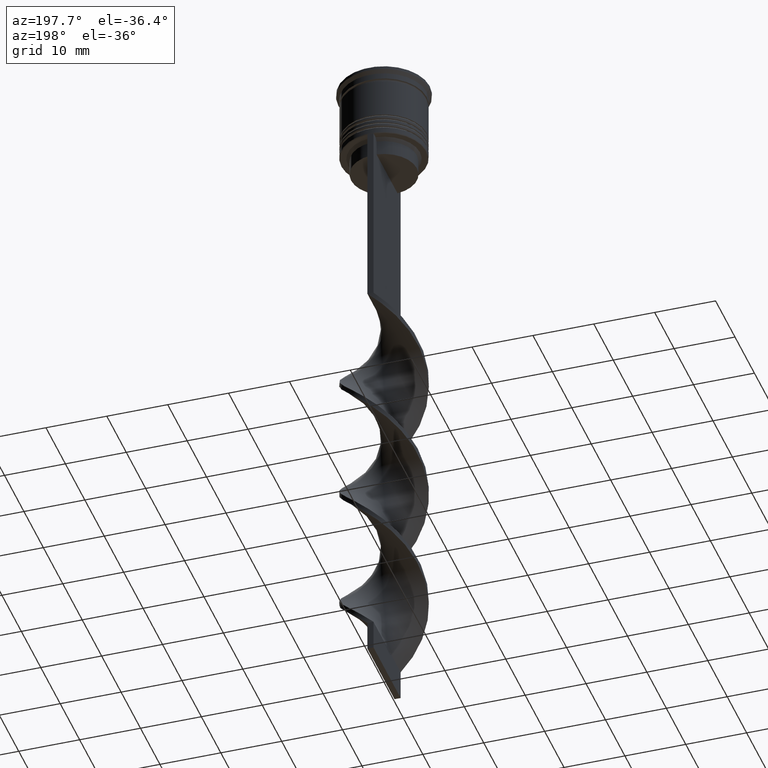
[diagram: clean part render]
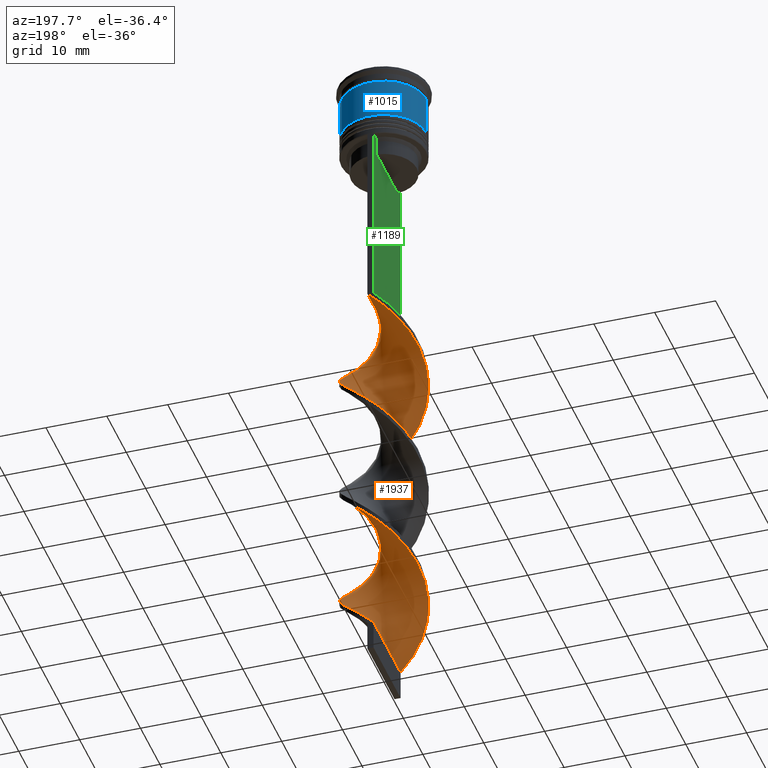
[diagram: same view with three faces highlighted in distinct colors, each labeled with its STEP entity id]
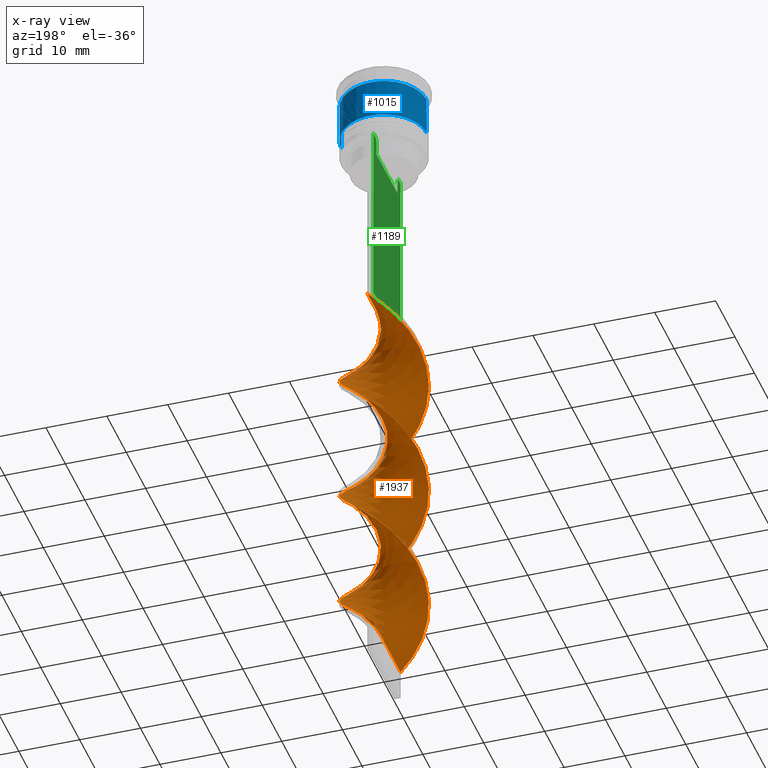
[diagram: x-ray of the same camera — body ghosted, the three highlighted faces saturated]
A machine part, auxiliary view with three faces highlighted in distinct colors.
The next image is the same camera in x-ray (body ghosted, the three faces saturated) — at least one of them is partly hidden behind the body in this view.
Their STEP definitions:

[orange] entity #1937 — the highlighted face is a freeform B-spline surface patch.
#11 = CARTESIAN_POINT ( 'NONE',  ( -2.971407234896040084, -6.414580771288303396, -105.0384615384615330 ) ) ;
#16 = CARTESIAN_POINT ( 'NONE',  ( -5.612054764172305532, -4.298947400341750935, -59.08974358974358410 ) ) ;
#27 = CARTESIAN_POINT ( 'NONE',  ( -4.944061684284418057, -5.052955718088653292, -80.42307692307691980 ) ) ;
#29 = CARTESIAN_POINT ( 'NONE',  ( 5.476854687890019058, -4.387945160064921524, -71.39743589743588359 ) ) ;
#42 = CARTESIAN_POINT ( 'NONE',  ( -6.477784105070039544, 2.830975188000776299, -72.21794871794871540 ) ) ;
#44 = VECTOR ( 'NONE', #3577, 1000.000000000000000 ) ;
#47 = CARTESIAN_POINT ( 'NONE',  ( 5.016113981771114005, -4.908013908077308862, -91.08974358974359120 ) ) ;
#60 = CARTESIAN_POINT ( 'NONE',  ( -2.810334191479778365, -6.430553765594348548, -82.88461538461537259 ) ) ;
#65 = CARTESIAN_POINT ( 'NONE',  ( -3.591144782915616673, -6.089317414547548601, -82.06410256410255499 ) ) ;
#73 = CARTESIAN_POINT ( 'NONE',  ( 2.810334191479774812, 6.430553765594350324, -61.55128205128204399 ) ) ;
#76 = CARTESIAN_POINT ( 'NONE',  ( -2.160680558725933675, -6.676934889838586962, -63.19230769230768630 ) ) ;
#78 = CARTESIAN_POINT ( 'NONE',  ( 6.888693778558713454, 1.340111198836287043, -97.65384615384614619 ) ) ;
#87 = CARTESIAN_POINT ( 'NONE',  ( 6.967048179568297250, -1.198476987909310010, -95.19230769230769340 ) ) ;
#93 = CARTESIAN_POINT ( 'NONE',  ( -0.4999999999999991673, 6.999999999999997335, -107.5000000000000000 ) ) ;
#126 = CARTESIAN_POINT ( 'NONE',  ( 0.3499538825558265454, 7.060710991611127696, -64.01282051282051100 ) ) ;
#127 = CARTESIAN_POINT ( 'NONE',  ( -2.810334191479775701, 6.430553765594355653, -46.78205128205127750 ) ) ;
#138 = CARTESIAN_POINT ( 'NONE',  ( 5.016113981771114005, -4.908013908077308862, -48.42307692307691269 ) ) ;
#144 = CARTESIAN_POINT ( 'NONE',  ( -6.044919434621171206, 3.564961294171262285, -71.39743589743588359 ) ) ;
#156 = CARTESIAN_POINT ( 'NONE',  ( -2.029523600043933396, 6.771790116641159152, -45.96153846153845990 ) ) ;
#166 = FACE_OUTER_BOUND ( 'NONE', #3426, .T. ) ;
#176 = CARTESIAN_POINT ( 'NONE',  ( -1.189738741299878777, 6.916250554126145644, -45.14102564102563520 ) ) ;
#179 = CARTESIAN_POINT ( 'NONE',  ( 4.420173199369930472, -5.517080415812867678, -47.60256410256409509 ) ) ;
#182 = CARTESIAN_POINT ( 'NONE',  ( -0.4999999999999991673, 6.999999999999997335, -64.83333333333332860 ) ) ;
#197 = CARTESIAN_POINT ( 'NONE',  ( -7.009230458814042386, -0.3474023247382335144, -97.65384615384614619 ) ) ;
#221 = CARTESIAN_POINT ( 'NONE',  ( 0.5000000000000000000, -6.999999999999997335, -43.50000000000000000 ) ) ;
#224 = CARTESIAN_POINT ( 'NONE',  ( -6.009647691495620947, 3.722934602041179986, -93.55128205128204399 ) ) ;
#238 = CARTESIAN_POINT ( 'NONE',  ( 1.349953882555827933, 6.939289008388872304, -85.34615384615385381 ) ) ;
#242 = CARTESIAN_POINT ( 'NONE',  ( -5.476854687890019058, 4.387945160064921524, -92.73076923076922640 ) ) ;
#259 = CARTESIAN_POINT ( 'NONE',  ( -4.944061684284418057, 5.052955718088663062, -91.91025641025643722 ) ) ;
#275 = CARTESIAN_POINT ( 'NONE',  ( -6.888693778558718783, 1.340111198836290152, -96.01282051282051100 ) ) ;
#294 = CARTESIAN_POINT ( 'NONE',  ( 6.725974819057651821, 2.176550059239734658, -55.80769230769230660 ) ) ;
#310 = CARTESIAN_POINT ( 'NONE',  ( 7.009230458814037057, -0.3474023247382352353, -96.01282051282051100 ) ) ;
#328 = CARTESIAN_POINT ( 'NONE',  ( 3.591144782915615785, 6.089317414547548601, -103.3974358974358694 ) ) ;
#343 = CARTESIAN_POINT ( 'NONE',  ( -5.016113981771113117, 4.908013908077309750, -69.75641025641024839 ) ) ;
#349 = CARTESIAN_POINT ( 'NONE',  ( 4.420173199369930472, -5.517080415812867678, -90.26923076923077360 ) ) ;
#357 = CARTESIAN_POINT ( 'NONE',  ( -0.4999999999999991673, 6.999999999999997335, -64.83333333333332860 ) ) ;
#359 = CARTESIAN_POINT ( 'NONE',  ( 1.189738741299876557, -6.916250554126146532, -66.47435897435896379 ) ) ;
#362 = CARTESIAN_POINT ( 'NONE',  ( 5.612054764172300203, -4.298947400341750047, -91.91025641025643722 ) ) ;
#398 = CARTESIAN_POINT ( 'NONE',  ( 2.029523600043933840, 6.771790116641152935, -62.37179487179486870 ) ) ;
#399 = CARTESIAN_POINT ( 'NONE',  ( -0.3499538825558239363, 7.060710991611133025, -44.32051282051282470 ) ) ;
#408 = CARTESIAN_POINT ( 'NONE',  ( -5.476854687890019058, 4.387945160064921524, -50.06410256410256210 ) ) ;
#412 = CARTESIAN_POINT ( 'NONE',  ( 2.971407234896035643, -6.414580771288298955, -45.96153846153845990 ) ) ;
#414 = CARTESIAN_POINT ( 'NONE',  ( 5.476854687890015505, 4.387945160064917083, -58.26923076923076650 ) ) ;
#446 = CARTESIAN_POINT ( 'NONE',  ( -6.888693778558718783, 1.340111198836290152, -53.34615384615383959 ) ) ;
#456 = CARTESIAN_POINT ( 'NONE',  ( -6.009647691495618282, -3.722934602041173324, -78.78205128205127039 ) ) ;
#457 = CARTESIAN_POINT ( 'NONE',  ( -5.016113981771120223, -4.908013908077310639, -59.91025641025640880 ) ) ;
#473 = CARTESIAN_POINT ( 'NONE',  ( -6.722416142319174170, -2.014726087955041933, -99.29487179487178139 ) ) ;
#491 = CARTESIAN_POINT ( 'NONE',  ( -1.189738741299878777, 6.916250554126145644, -87.80769230769230660 ) ) ;
#494 = CARTESIAN_POINT ( 'NONE',  ( 3.695790217132983280, -5.965830593550583316, -46.78205128205127750 ) ) ;
#514 = CARTESIAN_POINT ( 'NONE',  ( 3.591144782915617117, -6.089317414547553931, -68.93589743589743080 ) ) ;
#528 = CARTESIAN_POINT ( 'NONE',  ( -5.612054764172305532, -4.298947400341750935, -101.7564102564102484 ) ) ;
#533 = CARTESIAN_POINT ( 'NONE',  ( 6.888693778558718783, -1.340111198836292372, -74.67948717948718240 ) ) ;
#550 = CARTESIAN_POINT ( 'NONE',  ( 1.189738741299876557, -6.916250554126146532, -66.47435897435896379 ) ) ;
#566 = CARTESIAN_POINT ( 'NONE',  ( 1.349953882555827933, 6.939289008388872304, -85.34615384615383959 ) ) ;
#578 = CARTESIAN_POINT ( 'NONE',  ( -0.5000000000000008882, -7.000000000000002665, -107.5000000000000000 ) ) ;
#586 = CARTESIAN_POINT ( 'NONE',  ( 7.051412738059776864, 0.5036723384328409825, -54.16666666666665719 ) ) ;
#598 = CARTESIAN_POINT ( 'NONE',  ( 5.476854687890015505, 4.387945160064917083, -100.9358974358974308 ) ) ;
#603 = CARTESIAN_POINT ( 'NONE',  ( 6.044919434621171206, -3.564961294171262285, -92.73076923076922640 ) ) ;
#615 = CARTESIAN_POINT ( 'NONE',  ( 3.591144782915615785, 6.089317414547548601, -60.73076923076922640 ) ) ;
#631 = CARTESIAN_POINT ( 'NONE',  ( 6.888693778558713454, 1.340111198836287043, -54.98717948717948190 ) ) ;
#633 = CARTESIAN_POINT ( 'NONE',  ( 6.722416142319175059, 2.014726087955042821, -77.96153846153845279 ) ) ;
#644 = CARTESIAN_POINT ( 'NONE',  ( -4.267603233600016921, 5.571136566318108052, -48.42307692307691269 ) ) ;
#646 = CARTESIAN_POINT ( 'NONE',  ( -5.612054764172298427, 4.298947400341751823, -70.57692307692306599 ) ) ;
#650 = CARTESIAN_POINT ( 'NONE',  ( 4.944061684284417169, -5.052955718088663062, -70.57692307692306599 ) ) ;
#653 = CARTESIAN_POINT ( 'NONE',  ( 6.009647691495615618, 3.722934602041176877, -100.1153846153846132 ) ) ;
#668 = CARTESIAN_POINT ( 'NONE',  ( -2.810334191479778365, -6.430553765594348548, -82.88461538461537259 ) ) ;
#674 = EDGE_CURVE ( 'NONE', #1289, #2334, #1546, .T. ) ;
#710 = CARTESIAN_POINT ( 'NONE',  ( -7.009230458814042386, -0.3474023247382335144, -54.98717948717948190 ) ) ;
#717 = CARTESIAN_POINT ( 'NONE',  ( -6.725974819057656262, 2.176550059239736878, -52.52564102564102910 ) ) ;
#725 = CARTESIAN_POINT ( 'NONE',  ( -3.695790217132986832, -5.965830593550586869, -61.55128205128204399 ) ) ;
#736 = CARTESIAN_POINT ( 'NONE',  ( -6.477784105070046650, -2.830975188000774523, -57.44871794871794890 ) ) ;
#748 = CARTESIAN_POINT ( 'NONE',  ( 0.3499538825558224375, -7.060710991611133025, -65.65384615384614619 ) ) ;
#761 = CARTESIAN_POINT ( 'NONE',  ( 5.016113981771121111, 4.908013908077309750, -81.24358974358973740 ) ) ;
#765 = CARTESIAN_POINT ( 'NONE',  ( -1.189738741299878777, 6.916250554126145644, -87.80769230769230660 ) ) ;
#780 = CARTESIAN_POINT ( 'NONE',  ( -2.810334191479775701, 6.430553765594355653, -89.44871794871794179 ) ) ;
#796 = CARTESIAN_POINT ( 'NONE',  ( -6.725974819057656262, 2.176550059239736878, -95.19230769230769340 ) ) ;
#803 = CARTESIAN_POINT ( 'NONE',  ( 0.5000000000000000000, -6.999999999999997335, -43.50000000000000000 ) ) ;
#823 = CARTESIAN_POINT ( 'NONE',  ( 3.695790217132989941, 5.965830593550585093, -82.88461538461537259 ) ) ;
#828 = CARTESIAN_POINT ( 'NONE',  ( -0.4999999999999991673, 6.999999999999997335, -107.5000000000000000 ) ) ;
#838 = CARTESIAN_POINT ( 'NONE',  ( 6.725974819057657150, -2.176550059239735990, -73.85897435897436480 ) ) ;
#858 = CARTESIAN_POINT ( 'NONE',  ( 5.476854687890015505, 4.387945160064917083, -58.26923076923076650 ) ) ;
#876 = CARTESIAN_POINT ( 'NONE',  ( -1.189738741299884106, -6.916250554126139427, -84.52564102564103621 ) ) ;
#879 = CARTESIAN_POINT ( 'NONE',  ( 6.888693778558718783, -1.340111198836292372, -74.67948717948718240 ) ) ;
#883 = CARTESIAN_POINT ( 'NONE',  ( 2.029523600043933840, 6.771790116641152935, -105.0384615384615188 ) ) ;
#894 = CARTESIAN_POINT ( 'NONE',  ( 4.420173199369930472, -5.517080415812866789, -90.26923076923075939 ) ) ;
#896 = CARTESIAN_POINT ( 'NONE',  ( 2.029523600043930731, -6.771790116641160040, -67.29487179487178139 ) ) ;
#898 = CARTESIAN_POINT ( 'NONE',  ( 2.971407234896035643, -6.414580771288298955, -88.62820512820512420 ) ) ;
#910 = CARTESIAN_POINT ( 'NONE',  ( -6.009647691495618282, -3.722934602041173324, -78.78205128205127039 ) ) ;
#914 = CARTESIAN_POINT ( 'NONE',  ( 0.3499538825558265454, 7.060710991611127696, -106.6794871794871824 ) ) ;
#930 = CARTESIAN_POINT ( 'NONE',  ( 6.888693778558713454, 1.340111198836287043, -97.65384615384614619 ) ) ;
#968 = CARTESIAN_POINT ( 'NONE',  ( -2.160680558725927458, 6.676934889838583409, -66.47435897435896379 ) ) ;
#989 = CARTESIAN_POINT ( 'NONE',  ( -6.722416142319168841, 2.014726087955043266, -73.03846153846153300 ) ) ;
#1003 = CARTESIAN_POINT ( 'NONE',  ( 4.267603233600016033, 5.571136566318101835, -59.91025641025640880 ) ) ;
#1004 = CARTESIAN_POINT ( 'NONE',  ( -4.944061684284418057, 5.052955718088663062, -49.24358974358973740 ) ) ;
#1011 = CARTESIAN_POINT ( 'NONE',  ( -0.4999999999999991673, 6.999999999999997335, -107.5000000000000000 ) ) ;
#1018 = CARTESIAN_POINT ( 'NONE',  ( 6.477784105070041321, -2.830975188000772746, -50.88461538461537970 ) ) ;
#1033 = CARTESIAN_POINT ( 'NONE',  ( -6.044919434621174759, -3.564961294171263173, -58.26923076923076650 ) ) ;
#1041 = CARTESIAN_POINT ( 'NONE',  ( -6.967048179568301691, -1.198476987909310676, -98.47435897435896379 ) ) ;
#1046 = CARTESIAN_POINT ( 'NONE',  ( 7.009230458814037057, -0.3474023247382352353, -53.34615384615383959 ) ) ;
#1061 = CARTESIAN_POINT ( 'NONE',  ( -6.367811255276637716, 2.949742330640459098, -94.37179487179486159 ) ) ;
#1066 = CARTESIAN_POINT ( 'NONE',  ( 4.420173199369930472, -5.517080415812866789, -47.60256410256408799 ) ) ;
#1081 = CARTESIAN_POINT ( 'NONE',  ( 4.420173199369935801, 5.517080415812871230, -82.06410256410255499 ) ) ;
#1085 = CARTESIAN_POINT ( 'NONE',  ( 1.349953882555823492, -6.939289008388866975, -44.32051282051282470 ) ) ;
#1106 = CARTESIAN_POINT ( 'NONE',  ( -4.420173199369934913, -5.517080415812870342, -103.3974358974358694 ) ) ;
#1127 = CARTESIAN_POINT ( 'NONE',  ( -1.349953882555827045, -6.939289008388872304, -106.6794871794871682 ) ) ;
#1129 = CARTESIAN_POINT ( 'NONE',  ( -5.016113981771120223, -4.908013908077310639, -59.91025641025640880 ) ) ;
#1142 = CARTESIAN_POINT ( 'NONE',  ( -2.029523600043934728, -6.771790116641152935, -83.70512820512820440 ) ) ;
#1144 = CARTESIAN_POINT ( 'NONE',  ( 6.044919434621175647, 3.564961294171262285, -79.60256410256410220 ) ) ;
#1157 = CARTESIAN_POINT ( 'NONE',  ( -6.725974819057652709, -2.176550059239732438, -77.14102564102563520 ) ) ;
#1160 = ORIENTED_EDGE ( 'NONE', *, *, #2224, .F. ) ;
#1174 = CARTESIAN_POINT ( 'NONE',  ( 2.029523600043933840, 6.771790116641152935, -105.0384615384615330 ) ) ;
#1178 = CARTESIAN_POINT ( 'NONE',  ( 0.3499538825558224375, -7.060710991611133025, -65.65384615384614619 ) ) ;
#1190 = CARTESIAN_POINT ( 'NONE',  ( 5.016113981771114005, -4.908013908077308862, -91.08974358974359120 ) ) ;
#1193 = CARTESIAN_POINT ( 'NONE',  ( -3.695790217132986832, -5.965830593550586869, -61.55128205128204399 ) ) ;
#1195 = CARTESIAN_POINT ( 'NONE',  ( 6.477784105070041321, -2.830975188000772746, -93.55128205128204399 ) ) ;
#1205 = CARTESIAN_POINT ( 'NONE',  ( -1.349953882555821938, 6.939289008388866975, -65.65384615384614619 ) ) ;
#1211 = CARTESIAN_POINT ( 'NONE',  ( 6.367811255276634164, 2.949742330640454657, -99.29487179487178139 ) ) ;
#1224 = CARTESIAN_POINT ( 'NONE',  ( 1.349953882555823492, -6.939289008388866975, -44.32051282051282470 ) ) ;
#1230 = VERTEX_POINT ( 'NONE', #1531 ) ;
#1245 = CARTESIAN_POINT ( 'NONE',  ( -4.267603233600016921, 5.571136566318108052, -48.42307692307691269 ) ) ;
#1253 = CARTESIAN_POINT ( 'NONE',  ( 0.5000000000000000000, 7.000000000000002665, -43.50000000000000000 ) ) ;
#1257 = CARTESIAN_POINT ( 'NONE',  ( 6.967048179568298139, -1.198476987909309788, -52.52564102564102910 ) ) ;
#1260 = CARTESIAN_POINT ( 'NONE',  ( 7.009230458814037057, -0.3474023247382352353, -53.34615384615383959 ) ) ;
#1282 = CARTESIAN_POINT ( 'NONE',  ( -5.476854687890015505, -4.387945160064916195, -79.60256410256410220 ) ) ;
#1289 = VERTEX_POINT ( 'NONE', #221 ) ;
#1298 = CARTESIAN_POINT ( 'NONE',  ( 5.612054764172300203, -4.298947400341750047, -49.24358974358974450 ) ) ;
#1303 = CARTESIAN_POINT ( 'NONE',  ( 6.888693778558713454, 1.340111198836287043, -54.98717948717948190 ) ) ;
#1321 = CARTESIAN_POINT ( 'NONE',  ( 6.477784105070041321, -2.830975188000772746, -50.88461538461538680 ) ) ;
#1338 = CARTESIAN_POINT ( 'NONE',  ( -4.944061684284418057, 5.052955718088663062, -91.91025641025643722 ) ) ;
#1341 = CARTESIAN_POINT ( 'NONE',  ( -6.044919434621174759, -3.564961294171263173, -100.9358974358974308 ) ) ;
#1354 = CARTESIAN_POINT ( 'NONE',  ( -2.810334191479775701, 6.430553765594355653, -89.44871794871794179 ) ) ;
#1360 = CARTESIAN_POINT ( 'NONE',  ( -7.009230458814042386, -0.3474023247382335144, -97.65384615384614619 ) ) ;
#1371 = CARTESIAN_POINT ( 'NONE',  ( 2.160680558725937228, 6.676934889838585185, -84.52564102564103621 ) ) ;
#1375 = CARTESIAN_POINT ( 'NONE',  ( 5.612054764172307308, 4.298947400341747382, -80.42307692307691980 ) ) ;
#1399 = CARTESIAN_POINT ( 'NONE',  ( -7.051412738059782193, 0.5036723384328418707, -96.83333333333332860 ) ) ;
#1406 = EDGE_CURVE ( 'NONE', #2334, #1230, #1890, .T. ) ;
#1415 = CARTESIAN_POINT ( 'NONE',  ( -2.160680558725927458, 6.676934889838583409, -66.47435897435896379 ) ) ;
#1430 = CARTESIAN_POINT ( 'NONE',  ( -3.695790217132982836, 5.965830593550583316, -68.11538461538459899 ) ) ;
#1442 = CARTESIAN_POINT ( 'NONE',  ( 2.810334191479774812, 6.430553765594350324, -104.2179487179487012 ) ) ;
#1445 = CARTESIAN_POINT ( 'NONE',  ( 3.591144782915617117, -6.089317414547554819, -68.93589743589743080 ) ) ;
#1449 = CARTESIAN_POINT ( 'NONE',  ( 7.051412738059777752, 0.5036723384328409825, -96.83333333333332860 ) ) ;
#1460 = CARTESIAN_POINT ( 'NONE',  ( -5.476854687890015505, -4.387945160064916195, -79.60256410256410220 ) ) ;
#1466 = CARTESIAN_POINT ( 'NONE',  ( 4.944061684284416280, 5.052955718088656845, -101.7564102564102484 ) ) ;
#1475 = CARTESIAN_POINT ( 'NONE',  ( 7.051412738059776864, 0.5036723384328409825, -96.83333333333332860 ) ) ;
#1477 = CARTESIAN_POINT ( 'NONE',  ( 6.477784105070047538, 2.830975188000770970, -78.78205128205127039 ) ) ;
#1481 = CARTESIAN_POINT ( 'NONE',  ( -4.944061684284418057, -5.052955718088653292, -80.42307692307691980 ) ) ;
#1505 = EDGE_CURVE ( 'NONE', #1289, #3370, #1684, .T. ) ;
#1510 = CARTESIAN_POINT ( 'NONE',  ( -0.3499538825558239363, 7.060710991611133025, -44.32051282051282470 ) ) ;
#1531 = CARTESIAN_POINT ( 'NONE',  ( -0.5000000000000008882, -7.000000000000002665, -107.5000000000000000 ) ) ;
#1533 = CARTESIAN_POINT ( 'NONE',  ( -5.016113981771113117, 4.908013908077309750, -69.75641025641024839 ) ) ;
#1544 = ORIENTED_EDGE ( 'NONE', *, *, #674, .F. ) ;
#1546 = LINE ( 'NONE', #3538, #44 ) ;
#1549 = CARTESIAN_POINT ( 'NONE',  ( -6.888693778558715231, -1.340111198836283046, -76.32051282051281760 ) ) ;
#1592 = CARTESIAN_POINT ( 'NONE',  ( 0.5000000000000000000, 7.000000000000002665, -43.50000000000000000 ) ) ;
#1608 = CARTESIAN_POINT ( 'NONE',  ( -7.051412738059782193, 0.5036723384328418707, -96.83333333333332860 ) ) ;
#1613 = CARTESIAN_POINT ( 'NONE',  ( -6.477784105070046650, -2.830975188000774079, -100.1153846153846274 ) ) ;
#1639 = CARTESIAN_POINT ( 'NONE',  ( 2.971407234896040972, 6.414580771288303396, -83.70512820512820440 ) ) ;
#1653 = CARTESIAN_POINT ( 'NONE',  ( -4.420173199369934913, -5.517080415812871230, -103.3974358974358836 ) ) ;
#1658 = CARTESIAN_POINT ( 'NONE',  ( 4.420173199369935801, 5.517080415812870342, -82.06410256410255499 ) ) ;
#1672 = CARTESIAN_POINT ( 'NONE',  ( 6.044919434621175647, 3.564961294171262285, -79.60256410256410220 ) ) ;
#1684 =( BOUNDED_CURVE ( )  B_SPLINE_CURVE ( 2, ( #2080, #1224, #3183, #412, #2639, #179, #138, #1298, #2410, #1018, #2874, #1257, #1260, #1830, #1303, #3191, #2625, #2683, #414, #1794, #1003, #2917, #2900, #398, #2644, #126, #182, #3225, #968, #3462, #2086, #1846, #1533, #2394, #144, #3489, #989, #2951, #2109, #2931, #1549, #2124, #2664, #456, #1282, #1481, #2052, #65, #668, #2002, #2562, #3105, #3138, #2274, #3149, #898, #3118, #349, #47, #362, #603, #1195, #2336, #1762, #2289, #1449, #78, #3378, #1211, #653, #2862, #1466, #2590, #3429, #3408, #883, #2065, #914, #93 ),
 .UNSPECIFIED., .F., .T. ) 
 B_SPLINE_CURVE_WITH_KNOTS ( ( 3, 2, 2, 2, 2, 2, 2, 2, 2, 2, 2, 2, 2, 2, 2, 2, 2, 2, 2, 2, 2, 2, 2, 2, 2, 2, 2, 2, 2, 2, 2, 2, 2, 2, 2, 2, 2, 2, 2, 3 ),
 ( 0.000000000000000000, 0.01923076923076923184, 0.03846153846153846367, 0.05769230769230768857, 0.07692307692307692735, 0.09615384615384615918, 0.1153846153846153771, 0.1346153846153846090, 0.1538461538461538547, 0.1730769230769230449, 0.1923076923076923184, 0.2115384615384615363, 0.2307692307692307543, 0.2500000000000000000, 0.2692307692307692180, 0.2884615384615384359, 0.3076923076923077094, 0.3269230769230769273, 0.3461538461538460898, 0.3653846153846153633, 0.3846153846153846367, 0.4038461538461539102, 0.4230769230769230727, 0.4423076923076922906, 0.4615384615384615086, 0.4807692307692307820, 0.5000000000000000000, 0.5192307692307692735, 0.5384615384615384359, 0.5576923076923077094, 0.5769230769230768718, 0.5961538461538461453, 0.6153846153846154188, 0.6346153846153845812, 0.6538461538461538547, 0.6730769230769230171, 0.6923076923076921796, 0.7115384615384615641, 0.7307692307692307265, 0.7500000000000000000 ),
 .UNSPECIFIED. ) 
 CURVE ( )  GEOMETRIC_REPRESENTATION_ITEM ( )  RATIONAL_B_SPLINE_CURVE ( ( 1.000000000000000000, 0.9927088740980539727, 1.000000000000000000, 0.9927088740980539727, 1.000000000000000000, 0.9927088740980539727, 1.000000000000000000, 0.9927088740980539727, 1.000000000000000000, 0.9927088740980539727, 1.000000000000000000, 0.9927088740980539727, 1.000000000000000000, 0.9927088740980539727, 1.000000000000000000, 0.9927088740980539727, 1.000000000000000000, 0.9927088740980539727, 1.000000000000000000, 0.9927088740980539727, 1.000000000000000000, 0.9927088740980539727, 1.000000000000000000, 0.9927088740980539727, 1.000000000000000000, 0.9927088740980539727, 1.000000000000000000, 0.9927088740980539727, 1.000000000000000000, 0.9927088740980539727, 1.000000000000000000, 0.9927088740980539727, 1.000000000000000000, 0.9927088740980539727, 1.000000000000000000, 0.9927088740980539727, 1.000000000000000000, 0.9927088740980539727, 1.000000000000000000, 0.9927088740980539727, 1.000000000000000000, 0.9927088740980539727, 1.000000000000000000, 0.9927088740980539727, 1.000000000000000000, 0.9927088740980539727, 1.000000000000000000, 0.9927088740980539727, 1.000000000000000000, 0.9927088740980539727, 1.000000000000000000, 0.9927088740980539727, 1.000000000000000000, 0.9927088740980539727, 1.000000000000000000, 0.9927088740980539727, 1.000000000000000000, 0.9927088740980539727, 1.000000000000000000, 0.9927088740980539727, 1.000000000000000000, 0.9927088740980539727, 1.000000000000000000, 0.9927088740980539727, 1.000000000000000000, 0.9927088740980539727, 1.000000000000000000, 0.9927088740980539727, 1.000000000000000000, 0.9927088740980539727, 1.000000000000000000, 0.9927088740980539727, 1.000000000000000000, 0.9927088740980539727, 1.000000000000000000, 0.9927088740980539727, 1.000000000000000000, 0.9927088740980539727, 1.000000000000000000 ) ) 
 REPRESENTATION_ITEM ( '' )  );
#1690 = CARTESIAN_POINT ( 'NONE',  ( -6.967048179568301691, -1.198476987909310898, -98.47435897435896379 ) ) ;
#1709 = CARTESIAN_POINT ( 'NONE',  ( -6.967048179568296362, 1.198476987909309566, -73.85897435897436480 ) ) ;
#1722 = CARTESIAN_POINT ( 'NONE',  ( 4.944061684284416280, 5.052955718088656845, -101.7564102564102484 ) ) ;
#1728 = B_SPLINE_CURVE_WITH_KNOTS ( 'NONE', 3,
 ( #578, #2213, #3318, #828 ),
 .UNSPECIFIED., .F., .F.,
 ( 4, 4 ),
 ( 0.000000000000000000, 1.000000000000000000 ),
 .UNSPECIFIED. ) ;
#1739 = CARTESIAN_POINT ( 'NONE',  ( 4.944061684284416280, 5.052955718088656845, -59.08974358974359120 ) ) ;
#1756 = CARTESIAN_POINT ( 'NONE',  ( 1.189738741299880109, 6.916250554126139427, -63.19230769230768630 ) ) ;
#1762 = CARTESIAN_POINT ( 'NONE',  ( 6.967048179568298139, -1.198476987909309788, -95.19230769230769340 ) ) ;
#1770 = CARTESIAN_POINT ( 'NONE',  ( 4.267603233600016033, 5.571136566318101835, -59.91025641025640880 ) ) ;
#1794 = CARTESIAN_POINT ( 'NONE',  ( 4.944061684284416280, 5.052955718088656845, -59.08974358974358410 ) ) ;
#1830 = CARTESIAN_POINT ( 'NONE',  ( 7.051412738059777752, 0.5036723384328409825, -54.16666666666666430 ) ) ;
#1846 = CARTESIAN_POINT ( 'NONE',  ( -4.420173199369929584, 5.517080415812868566, -68.93589743589743080 ) ) ;
#1847 = CARTESIAN_POINT ( 'NONE',  ( -2.971407234896040084, -6.414580771288303396, -62.37179487179486870 ) ) ;
#1879 = CARTESIAN_POINT ( 'NONE',  ( -6.009647691495620947, 3.722934602041179986, -93.55128205128204399 ) ) ;
#1883 = CARTESIAN_POINT ( 'NONE',  ( 2.160680558725937228, 6.676934889838585185, -84.52564102564103621 ) ) ;
#1890 =( BOUNDED_CURVE ( )  B_SPLINE_CURVE ( 2, ( #1253, #1510, #176, #156, #3497, #3455, #644, #2076, #408, #2364, #3476, #717, #446, #2870, #2175, #3056, #2694, #736, #1033, #16, #1129, #2813, #1193, #2823, #76, #2301, #2586, #1178, #359, #896, #2287, #1445, #2559, #650, #29, #3376, #3103, #1999, #879, #2015, #3406, #3137, #633, #1477, #1144, #2140, #761, #1081, #2464, #2987, #1371, #238, #2429, #3539, #491, #3578, #1354, #2196, #3302, #1338, #3283, #1879, #1061, #796, #2450, #1608, #197, #1041, #473, #2160, #3240, #528, #2717, #1653, #3560, #3263, #2178, #3005, #1921 ),
 .UNSPECIFIED., .F., .T. ) 
 B_SPLINE_CURVE_WITH_KNOTS ( ( 3, 2, 2, 2, 2, 2, 2, 2, 2, 2, 2, 2, 2, 2, 2, 2, 2, 2, 2, 2, 2, 2, 2, 2, 2, 2, 2, 2, 2, 2, 2, 2, 2, 2, 2, 2, 2, 2, 2, 3 ),
 ( 0.000000000000000000, 0.01923076923076923184, 0.03846153846153846367, 0.05769230769230768857, 0.07692307692307692735, 0.09615384615384615918, 0.1153846153846153771, 0.1346153846153846090, 0.1538461538461538547, 0.1730769230769230449, 0.1923076923076923184, 0.2115384615384615363, 0.2307692307692307543, 0.2500000000000000000, 0.2692307692307692180, 0.2884615384615384359, 0.3076923076923077094, 0.3269230769230769273, 0.3461538461538460898, 0.3653846153846153633, 0.3846153846153846367, 0.4038461538461539102, 0.4230769230769230727, 0.4423076923076922906, 0.4615384615384615086, 0.4807692307692307820, 0.5000000000000000000, 0.5192307692307692735, 0.5384615384615384359, 0.5576923076923077094, 0.5769230769230768718, 0.5961538461538461453, 0.6153846153846154188, 0.6346153846153845812, 0.6538461538461538547, 0.6730769230769230171, 0.6923076923076921796, 0.7115384615384615641, 0.7307692307692307265, 0.7500000000000000000 ),
 .UNSPECIFIED. ) 
 CURVE ( )  GEOMETRIC_REPRESENTATION_ITEM ( )  RATIONAL_B_SPLINE_CURVE ( ( 1.000000000000000000, 0.9927088740980539727, 1.000000000000000000, 0.9927088740980539727, 1.000000000000000000, 0.9927088740980539727, 1.000000000000000000, 0.9927088740980539727, 1.000000000000000000, 0.9927088740980539727, 1.000000000000000000, 0.9927088740980539727, 1.000000000000000000, 0.9927088740980539727, 1.000000000000000000, 0.9927088740980539727, 1.000000000000000000, 0.9927088740980539727, 1.000000000000000000, 0.9927088740980539727, 1.000000000000000000, 0.9927088740980539727, 1.000000000000000000, 0.9927088740980539727, 1.000000000000000000, 0.9927088740980539727, 1.000000000000000000, 0.9927088740980539727, 1.000000000000000000, 0.9927088740980539727, 1.000000000000000000, 0.9927088740980539727, 1.000000000000000000, 0.9927088740980539727, 1.000000000000000000, 0.9927088740980539727, 1.000000000000000000, 0.9927088740980539727, 1.000000000000000000, 0.9927088740980539727, 1.000000000000000000, 0.9927088740980539727, 1.000000000000000000, 0.9927088740980539727, 1.000000000000000000, 0.9927088740980539727, 1.000000000000000000, 0.9927088740980539727, 1.000000000000000000, 0.9927088740980539727, 1.000000000000000000, 0.9927088740980539727, 1.000000000000000000, 0.9927088740980539727, 1.000000000000000000, 0.9927088740980539727, 1.000000000000000000, 0.9927088740980539727, 1.000000000000000000, 0.9927088740980539727, 1.000000000000000000, 0.9927088740980539727, 1.000000000000000000, 0.9927088740980539727, 1.000000000000000000, 0.9927088740980539727, 1.000000000000000000, 0.9927088740980539727, 1.000000000000000000, 0.9927088740980539727, 1.000000000000000000, 0.9927088740980539727, 1.000000000000000000, 0.9927088740980539727, 1.000000000000000000, 0.9927088740980539727, 1.000000000000000000, 0.9927088740980539727, 1.000000000000000000 ) ) 
 REPRESENTATION_ITEM ( '' )  );
#1902 = CARTESIAN_POINT ( 'NONE',  ( 2.029523600043930731, -6.771790116641160040, -67.29487179487178139 ) ) ;
#1921 = CARTESIAN_POINT ( 'NONE',  ( -0.5000000000000008882, -7.000000000000002665, -107.5000000000000000 ) ) ;
#1926 = CARTESIAN_POINT ( 'NONE',  ( 2.971407234896035199, -6.414580771288298955, -45.96153846153845279 ) ) ;
#1937 = ADVANCED_FACE ( 'NONE', ( #166 ), #2540, .T. ) ;
#1944 = CARTESIAN_POINT ( 'NONE',  ( -0.3499538825558239363, 7.060710991611133025, -86.98717948717948900 ) ) ;
#1961 = CARTESIAN_POINT ( 'NONE',  ( 2.160680558725929679, -6.676934889838582521, -45.14102564102563520 ) ) ;
#1980 = CARTESIAN_POINT ( 'NONE',  ( 5.612054764172300203, -4.298947400341750047, -91.91025641025643722 ) ) ;
#1997 = CARTESIAN_POINT ( 'NONE',  ( 2.160680558725929679, -6.676934889838582521, -87.80769230769230660 ) ) ;
#1999 = CARTESIAN_POINT ( 'NONE',  ( 6.725974819057657150, -2.176550059239735546, -73.85897435897436480 ) ) ;
#2002 = CARTESIAN_POINT ( 'NONE',  ( -2.029523600043934728, -6.771790116641152935, -83.70512820512820440 ) ) ;
#2011 = CARTESIAN_POINT ( 'NONE',  ( 6.367811255276634164, 2.949742330640454657, -56.62820512820513130 ) ) ;
#2015 = CARTESIAN_POINT ( 'NONE',  ( 7.051412738059782193, -0.5036723384328427588, -75.50000000000000000 ) ) ;
#2029 = CARTESIAN_POINT ( 'NONE',  ( -4.267603233600016921, -5.571136566318100947, -81.24358974358973740 ) ) ;
#2045 = CARTESIAN_POINT ( 'NONE',  ( -6.888693778558715231, -1.340111198836283046, -76.32051282051281760 ) ) ;
#2049 = ORIENTED_EDGE ( 'NONE', *, *, #1505, .T. ) ;
#2052 = CARTESIAN_POINT ( 'NONE',  ( -4.267603233600016921, -5.571136566318100947, -81.24358974358973740 ) ) ;
#2065 = CARTESIAN_POINT ( 'NONE',  ( 1.189738741299880109, 6.916250554126139427, -105.8589743589743506 ) ) ;
#2076 = CARTESIAN_POINT ( 'NONE',  ( -4.944061684284418057, 5.052955718088663062, -49.24358974358974450 ) ) ;
#2080 = CARTESIAN_POINT ( 'NONE',  ( 0.5000000000000000000, -6.999999999999997335, -43.50000000000000000 ) ) ;
#2086 = CARTESIAN_POINT ( 'NONE',  ( -3.695790217132982836, 5.965830593550583316, -68.11538461538459899 ) ) ;
#2109 = CARTESIAN_POINT ( 'NONE',  ( -7.009230458814037057, 0.3474023247382377333, -74.67948717948718240 ) ) ;
#2110 = CARTESIAN_POINT ( 'NONE',  ( -3.591144782915618006, 6.089317414547553042, -47.60256410256408799 ) ) ;
#2124 = CARTESIAN_POINT ( 'NONE',  ( -6.725974819057652709, -2.176550059239732438, -77.14102564102563520 ) ) ;
#2125 = CARTESIAN_POINT ( 'NONE',  ( -6.367811255276637716, 2.949742330640459098, -51.70512820512820440 ) ) ;
#2140 = CARTESIAN_POINT ( 'NONE',  ( 5.612054764172307308, 4.298947400341747382, -80.42307692307691980 ) ) ;
#2143 = CARTESIAN_POINT ( 'NONE',  ( -1.349953882555827045, -6.939289008388872304, -64.01282051282051100 ) ) ;
#2160 = CARTESIAN_POINT ( 'NONE',  ( -6.477784105070046650, -2.830975188000774523, -100.1153846153846132 ) ) ;
#2165 = CARTESIAN_POINT ( 'NONE',  ( 4.267603233600016033, -5.571136566318108940, -69.75641025641024839 ) ) ;
#2175 = CARTESIAN_POINT ( 'NONE',  ( -7.009230458814042386, -0.3474023247382335144, -54.98717948717948190 ) ) ;
#2178 = CARTESIAN_POINT ( 'NONE',  ( -2.160680558725933675, -6.676934889838586962, -105.8589743589743506 ) ) ;
#2183 = CARTESIAN_POINT ( 'NONE',  ( 6.967048179568297250, -1.198476987909310010, -52.52564102564103621 ) ) ;
#2196 = CARTESIAN_POINT ( 'NONE',  ( -3.591144782915618006, 6.089317414547553931, -90.26923076923077360 ) ) ;
#2201 = CARTESIAN_POINT ( 'NONE',  ( 6.967048179568302579, 1.198476987909308011, -77.14102564102563520 ) ) ;
#2213 = CARTESIAN_POINT ( 'NONE',  ( -0.5000000000000003331, -2.333333333333336590, -107.5000000000000000 ) ) ;
#2222 = CARTESIAN_POINT ( 'NONE',  ( -3.695790217132986832, -5.965830593550586869, -104.2179487179487012 ) ) ;
#2224 = EDGE_CURVE ( 'NONE', #1230, #3370, #1728, .T. ) ;
#2239 = CARTESIAN_POINT ( 'NONE',  ( -0.5000000000000008882, -7.000000000000002665, -107.5000000000000000 ) ) ;
#2253 = CARTESIAN_POINT ( 'NONE',  ( 0.3499538825558265454, 7.060710991611127696, -64.01282051282051100 ) ) ;
#2271 = CARTESIAN_POINT ( 'NONE',  ( -7.009230458814037057, 0.3474023247382377333, -74.67948717948718240 ) ) ;
#2274 = CARTESIAN_POINT ( 'NONE',  ( 1.349953882555823492, -6.939289008388866975, -86.98717948717948900 ) ) ;
#2284 = CARTESIAN_POINT ( 'NONE',  ( -2.971407234896032978, 6.414580771288299843, -67.29487179487178139 ) ) ;
#2287 = CARTESIAN_POINT ( 'NONE',  ( 2.810334191479775257, -6.430553765594355653, -68.11538461538459899 ) ) ;
#2289 = CARTESIAN_POINT ( 'NONE',  ( 7.009230458814037057, -0.3474023247382352353, -96.01282051282051100 ) ) ;
#2298 = CARTESIAN_POINT ( 'NONE',  ( 6.009647691495616506, 3.722934602041176433, -57.44871794871794890 ) ) ;
#2301 = CARTESIAN_POINT ( 'NONE',  ( -1.349953882555827045, -6.939289008388872304, -64.01282051282051100 ) ) ;
#2315 = CARTESIAN_POINT ( 'NONE',  ( 6.477784105070041321, -2.830975188000772746, -93.55128205128204399 ) ) ;
#2334 = VERTEX_POINT ( 'NONE', #3151 ) ;
#2336 = CARTESIAN_POINT ( 'NONE',  ( 6.722416142319168841, -2.014726087955042377, -94.37179487179486159 ) ) ;
#2337 = CARTESIAN_POINT ( 'NONE',  ( -6.044919434621174759, -3.564961294171263173, -58.26923076923076650 ) ) ;
#2351 = CARTESIAN_POINT ( 'NONE',  ( -6.888693778558718783, 1.340111198836290152, -53.34615384615383959 ) ) ;
#2364 = CARTESIAN_POINT ( 'NONE',  ( -6.009647691495620947, 3.722934602041179986, -50.88461538461537970 ) ) ;
#2373 = CARTESIAN_POINT ( 'NONE',  ( -1.189738741299878777, 6.916250554126145644, -45.14102564102563520 ) ) ;
#2378 = ORIENTED_EDGE ( 'NONE', *, *, #1406, .F. ) ;
#2394 = CARTESIAN_POINT ( 'NONE',  ( -5.612054764172298427, 4.298947400341751823, -70.57692307692306599 ) ) ;
#2395 = CARTESIAN_POINT ( 'NONE',  ( -6.722416142319174170, -2.014726087955041933, -56.62820512820513130 ) ) ;
#2410 = CARTESIAN_POINT ( 'NONE',  ( 6.044919434621171206, -3.564961294171262285, -50.06410256410256210 ) ) ;
#2429 = CARTESIAN_POINT ( 'NONE',  ( 0.5000000000000000000, 7.000000000000002665, -86.16666666666667140 ) ) ;
#2433 = CARTESIAN_POINT ( 'NONE',  ( -6.367811255276637716, 2.949742330640459098, -94.37179487179486159 ) ) ;
#2450 = CARTESIAN_POINT ( 'NONE',  ( -6.888693778558718783, 1.340111198836290152, -96.01282051282051100 ) ) ;
#2454 = CARTESIAN_POINT ( 'NONE',  ( 5.016113981771121111, 4.908013908077309750, -81.24358974358973740 ) ) ;
#2464 = CARTESIAN_POINT ( 'NONE',  ( 3.695790217132989941, 5.965830593550585093, -82.88461538461537259 ) ) ;
#2468 = CARTESIAN_POINT ( 'NONE',  ( -5.612054764172305532, -4.298947400341750935, -101.7564102564102484 ) ) ;
#2484 = CARTESIAN_POINT ( 'NONE',  ( 4.944061684284417169, -5.052955718088663062, -70.57692307692306599 ) ) ;
#2508 = CARTESIAN_POINT ( 'NONE',  ( -5.016113981771120223, -4.908013908077310639, -102.5769230769230660 ) ) ;
#2521 = CARTESIAN_POINT ( 'NONE',  ( -7.051412738059776864, -0.5036723384328400943, -75.49999999999998579 ) ) ;
#2538 = CARTESIAN_POINT ( 'NONE',  ( -4.420173199369929584, 5.517080415812867678, -68.93589743589743080 ) ) ;
#2540 =( BOUNDED_SURFACE ( )  B_SPLINE_SURFACE ( 1, 2, ( 
 ( #1592, #399, #2373, #2626, #127, #2110, #1245, #1004, #3210, #2665, #2125, #2952, #2351, #2932, #710, #3463, #2395, #3192, #2337, #3226, #457, #3505, #725, #1847, #2684, #2143, #3247, #748, #550, #1902, #3011, #514, #2165, #2484, #2723, #3052, #3305, #838, #533, #3287, #3565, #2201, #3268, #3325, #1672, #1375, #2454, #1658, #823, #1639, #1883, #566, #2774, #1944, #765, #2758, #780, #2990, #3037, #259, #242, #224, #2433, #2743, #275, #1399, #1360, #1690, #3599, #1613, #1341, #2468, #2508, #1106, #2222, #11, #3581, #1127, #2239 ),
 ( #803, #1085, #1961, #1926, #494, #1066, #2793, #3342, #3068, #1321, #3545, #2183, #1046, #586, #631, #294, #2011, #2298, #858, #1739, #1770, #615, #73, #3387, #1756, #2253, #357, #1205, #1415, #2284, #1430, #2538, #343, #646, #2556, #42, #3424, #1709, #2271, #2521, #2045, #1157, #3145, #910, #1460, #27, #2029, #3135, #60, #1142, #876, #2843, #2856, #3114, #1997, #3356, #2570, #894, #1190, #1980, #3086, #2315, #2810, #87, #310, #1475, #930, #3403, #3374, #3100, #598, #1722, #2821, #328, #1442, #1174, #2584, #2872, #1011 ) ),
 .UNSPECIFIED., .F., .F., .F. ) 
 B_SPLINE_SURFACE_WITH_KNOTS ( ( 2, 2 ),
 ( 3, 2, 2, 2, 2, 2, 2, 2, 2, 2, 2, 2, 2, 2, 2, 2, 2, 2, 2, 2, 2, 2, 2, 2, 2, 2, 2, 2, 2, 2, 2, 2, 2, 2, 2, 2, 2, 2, 2, 3 ),
 ( 0.000000000000000000, 1.000000000000000000 ),
 ( 0.000000000000000000, 0.01923076923076923184, 0.03846153846153846367, 0.05769230769230769551, 0.07692307692307692735, 0.09615384615384615918, 0.1153846153846153910, 0.1346153846153846090, 0.1538461538461538547, 0.1730769230769230727, 0.1923076923076923184, 0.2115384615384615363, 0.2307692307692307820, 0.2500000000000000000, 0.2692307692307692180, 0.2884615384615384359, 0.3076923076923077094, 0.3269230769230769273, 0.3461538461538461453, 0.3653846153846153633, 0.3846153846153846367, 0.4038461538461538547, 0.4230769230769230727, 0.4423076923076922906, 0.4615384615384615641, 0.4807692307692307820, 0.5000000000000000000, 0.5192307692307692735, 0.5384615384615384359, 0.5576923076923077094, 0.5769230769230768718, 0.5961538461538461453, 0.6153846153846154188, 0.6346153846153845812, 0.6538461538461538547, 0.6730769230769231282, 0.6923076923076922906, 0.7115384615384615641, 0.7307692307692307265, 0.7500000000000000000 ),
 .UNSPECIFIED. ) 
 GEOMETRIC_REPRESENTATION_ITEM ( )  RATIONAL_B_SPLINE_SURFACE ( (
 ( 1.000000000000000000, 0.9927088740980539727, 1.000000000000000000, 0.9927088740980539727, 1.000000000000000000, 0.9927088740980539727, 1.000000000000000000, 0.9927088740980539727, 1.000000000000000000, 0.9927088740980539727, 1.000000000000000000, 0.9927088740980539727, 1.000000000000000000, 0.9927088740980539727, 1.000000000000000000, 0.9927088740980539727, 1.000000000000000000, 0.9927088740980539727, 1.000000000000000000, 0.9927088740980539727, 1.000000000000000000, 0.9927088740980539727, 1.000000000000000000, 0.9927088740980539727, 1.000000000000000000, 0.9927088740980539727, 1.000000000000000000, 0.9927088740980539727, 1.000000000000000000, 0.9927088740980539727, 1.000000000000000000, 0.9927088740980539727, 1.000000000000000000, 0.9927088740980539727, 1.000000000000000000, 0.9927088740980539727, 1.000000000000000000, 0.9927088740980539727, 1.000000000000000000, 0.9927088740980539727, 1.000000000000000000, 0.9927088740980539727, 1.000000000000000000, 0.9927088740980539727, 1.000000000000000000, 0.9927088740980539727, 1.000000000000000000, 0.9927088740980539727, 1.000000000000000000, 0.9927088740980539727, 1.000000000000000000, 0.9927088740980539727, 1.000000000000000000, 0.9927088740980539727, 1.000000000000000000, 0.9927088740980539727, 1.000000000000000000, 0.9927088740980539727, 1.000000000000000000, 0.9927088740980539727, 1.000000000000000000, 0.9927088740980539727, 1.000000000000000000, 0.9927088740980539727, 1.000000000000000000, 0.9927088740980539727, 1.000000000000000000, 0.9927088740980539727, 1.000000000000000000, 0.9927088740980539727, 1.000000000000000000, 0.9927088740980539727, 1.000000000000000000, 0.9927088740980539727, 1.000000000000000000, 0.9927088740980539727, 1.000000000000000000, 0.9927088740980539727, 1.000000000000000000),
 ( 1.000000000000000000, 0.9927088740980539727, 1.000000000000000000, 0.9927088740980539727, 1.000000000000000000, 0.9927088740980539727, 1.000000000000000000, 0.9927088740980539727, 1.000000000000000000, 0.9927088740980539727, 1.000000000000000000, 0.9927088740980539727, 1.000000000000000000, 0.9927088740980539727, 1.000000000000000000, 0.9927088740980539727, 1.000000000000000000, 0.9927088740980539727, 1.000000000000000000, 0.9927088740980539727, 1.000000000000000000, 0.9927088740980539727, 1.000000000000000000, 0.9927088740980539727, 1.000000000000000000, 0.9927088740980539727, 1.000000000000000000, 0.9927088740980539727, 1.000000000000000000, 0.9927088740980539727, 1.000000000000000000, 0.9927088740980539727, 1.000000000000000000, 0.9927088740980539727, 1.000000000000000000, 0.9927088740980539727, 1.000000000000000000, 0.9927088740980539727, 1.000000000000000000, 0.9927088740980539727, 1.000000000000000000, 0.9927088740980539727, 1.000000000000000000, 0.9927088740980539727, 1.000000000000000000, 0.9927088740980539727, 1.000000000000000000, 0.9927088740980539727, 1.000000000000000000, 0.9927088740980539727, 1.000000000000000000, 0.9927088740980539727, 1.000000000000000000, 0.9927088740980539727, 1.000000000000000000, 0.9927088740980539727, 1.000000000000000000, 0.9927088740980539727, 1.000000000000000000, 0.9927088740980539727, 1.000000000000000000, 0.9927088740980539727, 1.000000000000000000, 0.9927088740980539727, 1.000000000000000000, 0.9927088740980539727, 1.000000000000000000, 0.9927088740980539727, 1.000000000000000000, 0.9927088740980539727, 1.000000000000000000, 0.9927088740980539727, 1.000000000000000000, 0.9927088740980539727, 1.000000000000000000, 0.9927088740980539727, 1.000000000000000000, 0.9927088740980539727, 1.000000000000000000) ) ) 
 REPRESENTATION_ITEM ( '' )  SURFACE ( )  );
#2556 = CARTESIAN_POINT ( 'NONE',  ( -6.044919434621171206, 3.564961294171262285, -71.39743589743588359 ) ) ;
#2559 = CARTESIAN_POINT ( 'NONE',  ( 4.267603233600016033, -5.571136566318108940, -69.75641025641024839 ) ) ;
#2562 = CARTESIAN_POINT ( 'NONE',  ( -1.189738741299884106, -6.916250554126139427, -84.52564102564103621 ) ) ;
#2570 = CARTESIAN_POINT ( 'NONE',  ( 3.695790217132983280, -5.965830593550583316, -89.44871794871794179 ) ) ;
#2584 = CARTESIAN_POINT ( 'NONE',  ( 1.189738741299880109, 6.916250554126139427, -105.8589743589743506 ) ) ;
#2586 = CARTESIAN_POINT ( 'NONE',  ( -0.5000000000000008882, -7.000000000000002665, -64.83333333333332860 ) ) ;
#2590 = CARTESIAN_POINT ( 'NONE',  ( 4.267603233600016033, 5.571136566318101835, -102.5769230769230660 ) ) ;
#2597 = CARTESIAN_POINT ( 'NONE',  ( -0.4999999999999991673, 6.999999999999997335, -107.5000000000000000 ) ) ;
#2625 = CARTESIAN_POINT ( 'NONE',  ( 6.367811255276634164, 2.949742330640454657, -56.62820512820513130 ) ) ;
#2626 = CARTESIAN_POINT ( 'NONE',  ( -2.029523600043933396, 6.771790116641159152, -45.96153846153845279 ) ) ;
#2639 = CARTESIAN_POINT ( 'NONE',  ( 3.695790217132983280, -5.965830593550583316, -46.78205128205127750 ) ) ;
#2644 = CARTESIAN_POINT ( 'NONE',  ( 1.189738741299880109, 6.916250554126139427, -63.19230769230768630 ) ) ;
#2664 = CARTESIAN_POINT ( 'NONE',  ( -6.367811255276633275, -2.949742330640455545, -77.96153846153845279 ) ) ;
#2665 = CARTESIAN_POINT ( 'NONE',  ( -6.009647691495620947, 3.722934602041179986, -50.88461538461538680 ) ) ;
#2683 = CARTESIAN_POINT ( 'NONE',  ( 6.009647691495615618, 3.722934602041176877, -57.44871794871794890 ) ) ;
#2684 = CARTESIAN_POINT ( 'NONE',  ( -2.160680558725933675, -6.676934889838586962, -63.19230769230768630 ) ) ;
#2694 = CARTESIAN_POINT ( 'NONE',  ( -6.722416142319174170, -2.014726087955041933, -56.62820512820513130 ) ) ;
#2717 = CARTESIAN_POINT ( 'NONE',  ( -5.016113981771120223, -4.908013908077310639, -102.5769230769230660 ) ) ;
#2723 = CARTESIAN_POINT ( 'NONE',  ( 5.476854687890019058, -4.387945160064921524, -71.39743589743588359 ) ) ;
#2743 = CARTESIAN_POINT ( 'NONE',  ( -6.725974819057656262, 2.176550059239737323, -95.19230769230769340 ) ) ;
#2758 = CARTESIAN_POINT ( 'NONE',  ( -2.029523600043933396, 6.771790116641159152, -88.62820512820513841 ) ) ;
#2774 = CARTESIAN_POINT ( 'NONE',  ( 0.5000000000000000000, 7.000000000000002665, -86.16666666666667140 ) ) ;
#2793 = CARTESIAN_POINT ( 'NONE',  ( 5.016113981771114005, -4.908013908077308862, -48.42307692307691269 ) ) ;
#2810 = CARTESIAN_POINT ( 'NONE',  ( 6.722416142319168841, -2.014726087955042377, -94.37179487179486159 ) ) ;
#2813 = CARTESIAN_POINT ( 'NONE',  ( -4.420173199369934913, -5.517080415812871230, -60.73076923076922640 ) ) ;
#2821 = CARTESIAN_POINT ( 'NONE',  ( 4.267603233600016033, 5.571136566318101835, -102.5769230769230660 ) ) ;
#2823 = CARTESIAN_POINT ( 'NONE',  ( -2.971407234896039640, -6.414580771288303396, -62.37179487179486870 ) ) ;
#2843 = CARTESIAN_POINT ( 'NONE',  ( -0.3499538825558274335, -7.060710991611127696, -85.34615384615383959 ) ) ;
#2856 = CARTESIAN_POINT ( 'NONE',  ( 0.5000000000000000000, -6.999999999999997335, -86.16666666666667140 ) ) ;
#2862 = CARTESIAN_POINT ( 'NONE',  ( 5.476854687890015505, 4.387945160064917083, -100.9358974358974308 ) ) ;
#2870 = CARTESIAN_POINT ( 'NONE',  ( -7.051412738059782193, 0.5036723384328418707, -54.16666666666666430 ) ) ;
#2872 = CARTESIAN_POINT ( 'NONE',  ( 0.3499538825558265454, 7.060710991611127696, -106.6794871794871682 ) ) ;
#2874 = CARTESIAN_POINT ( 'NONE',  ( 6.722416142319168841, -2.014726087955042377, -51.70512820512820440 ) ) ;
#2900 = CARTESIAN_POINT ( 'NONE',  ( 2.810334191479774812, 6.430553765594350324, -61.55128205128204399 ) ) ;
#2917 = CARTESIAN_POINT ( 'NONE',  ( 3.591144782915615785, 6.089317414547548601, -60.73076923076922640 ) ) ;
#2931 = CARTESIAN_POINT ( 'NONE',  ( -7.051412738059777752, -0.5036723384328402053, -75.50000000000000000 ) ) ;
#2932 = CARTESIAN_POINT ( 'NONE',  ( -7.051412738059782193, 0.5036723384328418707, -54.16666666666665719 ) ) ;
#2951 = CARTESIAN_POINT ( 'NONE',  ( -6.967048179568297250, 1.198476987909309344, -73.85897435897436480 ) ) ;
#2952 = CARTESIAN_POINT ( 'NONE',  ( -6.725974819057656262, 2.176550059239737323, -52.52564102564103621 ) ) ;
#2987 = CARTESIAN_POINT ( 'NONE',  ( 2.971407234896040528, 6.414580771288303396, -83.70512820512820440 ) ) ;
#2990 = CARTESIAN_POINT ( 'NONE',  ( -3.591144782915618006, 6.089317414547553042, -90.26923076923075939 ) ) ;
#3005 = CARTESIAN_POINT ( 'NONE',  ( -1.349953882555827045, -6.939289008388872304, -106.6794871794871824 ) ) ;
#3011 = CARTESIAN_POINT ( 'NONE',  ( 2.810334191479775257, -6.430553765594355653, -68.11538461538459899 ) ) ;
#3037 = CARTESIAN_POINT ( 'NONE',  ( -4.267603233600016921, 5.571136566318108052, -91.08974358974359120 ) ) ;
#3052 = CARTESIAN_POINT ( 'NONE',  ( 6.009647691495618282, -3.722934602041183094, -72.21794871794871540 ) ) ;
#3056 = CARTESIAN_POINT ( 'NONE',  ( -6.967048179568301691, -1.198476987909310676, -55.80769230769230660 ) ) ;
#3068 = CARTESIAN_POINT ( 'NONE',  ( 6.044919434621171206, -3.564961294171262285, -50.06410256410256210 ) ) ;
#3086 = CARTESIAN_POINT ( 'NONE',  ( 6.044919434621171206, -3.564961294171262285, -92.73076923076922640 ) ) ;
#3100 = CARTESIAN_POINT ( 'NONE',  ( 6.009647691495616506, 3.722934602041176433, -100.1153846153846274 ) ) ;
#3103 = CARTESIAN_POINT ( 'NONE',  ( 6.367811255276637716, -2.949742330640459542, -73.03846153846153300 ) ) ;
#3105 = CARTESIAN_POINT ( 'NONE',  ( -0.3499538825558274335, -7.060710991611127696, -85.34615384615385381 ) ) ;
#3114 = CARTESIAN_POINT ( 'NONE',  ( 1.349953882555823492, -6.939289008388866975, -86.98717948717948900 ) ) ;
#3118 = CARTESIAN_POINT ( 'NONE',  ( 3.695790217132983280, -5.965830593550583316, -89.44871794871794179 ) ) ;
#3135 = CARTESIAN_POINT ( 'NONE',  ( -3.591144782915616673, -6.089317414547548601, -82.06410256410255499 ) ) ;
#3137 = CARTESIAN_POINT ( 'NONE',  ( 6.967048179568302579, 1.198476987909308011, -77.14102564102563520 ) ) ;
#3138 = CARTESIAN_POINT ( 'NONE',  ( 0.5000000000000000000, -6.999999999999997335, -86.16666666666667140 ) ) ;
#3145 = CARTESIAN_POINT ( 'NONE',  ( -6.367811255276633275, -2.949742330640455545, -77.96153846153845279 ) ) ;
#3149 = CARTESIAN_POINT ( 'NONE',  ( 2.160680558725929679, -6.676934889838582521, -87.80769230769230660 ) ) ;
#3151 = CARTESIAN_POINT ( 'NONE',  ( 0.5000000000000000000, 7.000000000000002665, -43.50000000000000000 ) ) ;
#3183 = CARTESIAN_POINT ( 'NONE',  ( 2.160680558725929679, -6.676934889838582521, -45.14102564102563520 ) ) ;
#3191 = CARTESIAN_POINT ( 'NONE',  ( 6.725974819057651821, 2.176550059239734214, -55.80769230769230660 ) ) ;
#3192 = CARTESIAN_POINT ( 'NONE',  ( -6.477784105070046650, -2.830975188000774079, -57.44871794871794890 ) ) ;
#3210 = CARTESIAN_POINT ( 'NONE',  ( -5.476854687890019058, 4.387945160064921524, -50.06410256410256210 ) ) ;
#3225 = CARTESIAN_POINT ( 'NONE',  ( -1.349953882555821938, 6.939289008388866975, -65.65384615384614619 ) ) ;
#3226 = CARTESIAN_POINT ( 'NONE',  ( -5.612054764172305532, -4.298947400341750935, -59.08974358974359120 ) ) ;
#3240 = CARTESIAN_POINT ( 'NONE',  ( -6.044919434621174759, -3.564961294171263173, -100.9358974358974308 ) ) ;
#3247 = CARTESIAN_POINT ( 'NONE',  ( -0.5000000000000008882, -7.000000000000002665, -64.83333333333332860 ) ) ;
#3263 = CARTESIAN_POINT ( 'NONE',  ( -2.971407234896039640, -6.414580771288303396, -105.0384615384615188 ) ) ;
#3268 = CARTESIAN_POINT ( 'NONE',  ( 6.722416142319175059, 2.014726087955042821, -77.96153846153845279 ) ) ;
#3283 = CARTESIAN_POINT ( 'NONE',  ( -5.476854687890019058, 4.387945160064921524, -92.73076923076922640 ) ) ;
#3287 = CARTESIAN_POINT ( 'NONE',  ( 7.051412738059782193, -0.5036723384328427588, -75.49999999999998579 ) ) ;
#3302 = CARTESIAN_POINT ( 'NONE',  ( -4.267603233600016921, 5.571136566318108052, -91.08974358974359120 ) ) ;
#3305 = CARTESIAN_POINT ( 'NONE',  ( 6.367811255276637716, -2.949742330640459542, -73.03846153846153300 ) ) ;
#3318 = CARTESIAN_POINT ( 'NONE',  ( -0.4999999999999996669, 2.333333333333331261, -107.5000000000000000 ) ) ;
#3325 = CARTESIAN_POINT ( 'NONE',  ( 6.477784105070047538, 2.830975188000770970, -78.78205128205127039 ) ) ;
#3342 = CARTESIAN_POINT ( 'NONE',  ( 5.612054764172300203, -4.298947400341750047, -49.24358974358973740 ) ) ;
#3356 = CARTESIAN_POINT ( 'NONE',  ( 2.971407234896035199, -6.414580771288298955, -88.62820512820513841 ) ) ;
#3370 = VERTEX_POINT ( 'NONE', #2597 ) ;
#3374 = CARTESIAN_POINT ( 'NONE',  ( 6.367811255276634164, 2.949742330640454657, -99.29487179487178139 ) ) ;
#3376 = CARTESIAN_POINT ( 'NONE',  ( 6.009647691495618282, -3.722934602041183094, -72.21794871794871540 ) ) ;
#3378 = CARTESIAN_POINT ( 'NONE',  ( 6.725974819057651821, 2.176550059239734214, -98.47435897435896379 ) ) ;
#3387 = CARTESIAN_POINT ( 'NONE',  ( 2.029523600043933840, 6.771790116641152935, -62.37179487179486870 ) ) ;
#3403 = CARTESIAN_POINT ( 'NONE',  ( 6.725974819057651821, 2.176550059239734658, -98.47435897435896379 ) ) ;
#3406 = CARTESIAN_POINT ( 'NONE',  ( 7.009230458814042386, 0.3474023247382295732, -76.32051282051281760 ) ) ;
#3408 = CARTESIAN_POINT ( 'NONE',  ( 2.810334191479774812, 6.430553765594350324, -104.2179487179487012 ) ) ;
#3424 = CARTESIAN_POINT ( 'NONE',  ( -6.722416142319168841, 2.014726087955043266, -73.03846153846153300 ) ) ;
#3426 = EDGE_LOOP ( 'NONE', ( #1544, #2049, #1160, #2378 ) ) ;
#3429 = CARTESIAN_POINT ( 'NONE',  ( 3.591144782915615785, 6.089317414547548601, -103.3974358974358836 ) ) ;
#3455 = CARTESIAN_POINT ( 'NONE',  ( -3.591144782915618006, 6.089317414547553931, -47.60256410256409509 ) ) ;
#3462 = CARTESIAN_POINT ( 'NONE',  ( -2.971407234896033422, 6.414580771288299843, -67.29487179487178139 ) ) ;
#3463 = CARTESIAN_POINT ( 'NONE',  ( -6.967048179568301691, -1.198476987909310898, -55.80769230769230660 ) ) ;
#3476 = CARTESIAN_POINT ( 'NONE',  ( -6.367811255276637716, 2.949742330640459098, -51.70512820512820440 ) ) ;
#3489 = CARTESIAN_POINT ( 'NONE',  ( -6.477784105070039544, 2.830975188000776743, -72.21794871794871540 ) ) ;
#3497 = CARTESIAN_POINT ( 'NONE',  ( -2.810334191479775701, 6.430553765594355653, -46.78205128205127750 ) ) ;
#3505 = CARTESIAN_POINT ( 'NONE',  ( -4.420173199369934913, -5.517080415812870342, -60.73076923076922640 ) ) ;
#3538 = CARTESIAN_POINT ( 'NONE',  ( 0.5000000000000000000, -6.999999999999997335, -43.50000000000000000 ) ) ;
#3539 = CARTESIAN_POINT ( 'NONE',  ( -0.3499538825558239363, 7.060710991611133025, -86.98717948717948900 ) ) ;
#3545 = CARTESIAN_POINT ( 'NONE',  ( 6.722416142319168841, -2.014726087955042377, -51.70512820512820440 ) ) ;
#3560 = CARTESIAN_POINT ( 'NONE',  ( -3.695790217132986832, -5.965830593550586869, -104.2179487179487012 ) ) ;
#3565 = CARTESIAN_POINT ( 'NONE',  ( 7.009230458814042386, 0.3474023247382295732, -76.32051282051281760 ) ) ;
#3577 = DIRECTION ( 'NONE',  ( 0.000000000000000000, 1.000000000000000000, 0.000000000000000000 ) ) ;
#3578 = CARTESIAN_POINT ( 'NONE',  ( -2.029523600043933396, 6.771790116641159152, -88.62820512820512420 ) ) ;
#3581 = CARTESIAN_POINT ( 'NONE',  ( -2.160680558725933675, -6.676934889838586962, -105.8589743589743506 ) ) ;
#3599 = CARTESIAN_POINT ( 'NONE',  ( -6.722416142319174170, -2.014726087955041933, -99.29487179487178139 ) ) ;

[blue] entity #1015 — the highlighted cylindrical surface (partial cylindrical patch) has radius 7 mm, axis along (-0, -0, 1).
#17 = CARTESIAN_POINT ( 'NONE',  ( 7.000000000000000888, 0.000000000000000000, -9.000000000000001776 ) ) ;
#83 = LINE ( 'NONE', #2594, #390 ) ;
#267 = DIRECTION ( 'NONE',  ( -0.000000000000000000, -0.000000000000000000, 1.000000000000000000 ) ) ;
#346 = EDGE_CURVE ( 'NONE', #2859, #3090, #1498, .T. ) ;
#390 = VECTOR ( 'NONE', #1484, 1000.000000000000000 ) ;
#686 = DIRECTION ( 'NONE',  ( 1.000000000000000000, 0.000000000000000000, 0.000000000000000000 ) ) ;
#774 = FACE_OUTER_BOUND ( 'NONE', #2007, .T. ) ;
#792 = CIRCLE ( 'NONE', #1030, 7.000000000000000888 ) ;
#999 = CARTESIAN_POINT ( 'NONE',  ( 0.000000000000000000, 0.000000000000000000, -9.000000000000001776 ) ) ;
#1010 = VERTEX_POINT ( 'NONE', #1056 ) ;
#1015 = ADVANCED_FACE ( 'NONE', ( #774 ), #2173, .T. ) ;
#1030 = AXIS2_PLACEMENT_3D ( 'NONE', #999, #1530, #686 ) ;
#1036 = DIRECTION ( 'NONE',  ( 1.000000000000000000, 0.000000000000000000, 0.000000000000000000 ) ) ;
#1056 = CARTESIAN_POINT ( 'NONE',  ( 6.999999999999997335, 0.000000000000000000, -2.500000000000000444 ) ) ;
#1451 = AXIS2_PLACEMENT_3D ( 'NONE', #3260, #267, #1036 ) ;
#1483 = EDGE_CURVE ( 'NONE', #2267, #2859, #792, .T. ) ;
#1484 = DIRECTION ( 'NONE',  ( -0.000000000000000000, -0.000000000000000000, 1.000000000000000000 ) ) ;
#1498 = LINE ( 'NONE', #1761, #2545 ) ;
#1530 = DIRECTION ( 'NONE',  ( -0.000000000000000000, -0.000000000000000000, 1.000000000000000000 ) ) ;
#1563 = CIRCLE ( 'NONE', #1451, 6.999999999999997335 ) ;
#1568 = ORIENTED_EDGE ( 'NONE', *, *, #1483, .T. ) ;
#1702 = ORIENTED_EDGE ( 'NONE', *, *, #2421, .F. ) ;
#1761 = CARTESIAN_POINT ( 'NONE',  ( -6.999999999999999112, 8.572527594031472204E-16, 0.000000000000000000 ) ) ;
#1894 = DIRECTION ( 'NONE',  ( -0.000000000000000000, -0.000000000000000000, 1.000000000000000000 ) ) ;
#2007 = EDGE_LOOP ( 'NONE', ( #1568, #2533, #2150, #1702 ) ) ;
#2150 = ORIENTED_EDGE ( 'NONE', *, *, #3147, .F. ) ;
#2173 = CYLINDRICAL_SURFACE ( 'NONE', #2365, 6.999999999999999112 ) ;
#2267 = VERTEX_POINT ( 'NONE', #17 ) ;
#2365 = AXIS2_PLACEMENT_3D ( 'NONE', #3217, #1894, #3532 ) ;
#2421 = EDGE_CURVE ( 'NONE', #2267, #1010, #83, .T. ) ;
#2469 = CARTESIAN_POINT ( 'NONE',  ( -7.000000000000000888, 8.572527594031474176E-16, -9.000000000000001776 ) ) ;
#2533 = ORIENTED_EDGE ( 'NONE', *, *, #346, .T. ) ;
#2545 = VECTOR ( 'NONE', #3427, 1000.000000000000000 ) ;
#2594 = CARTESIAN_POINT ( 'NONE',  ( 6.999999999999999112, 0.000000000000000000, 0.000000000000000000 ) ) ;
#2859 = VERTEX_POINT ( 'NONE', #2469 ) ;
#3000 = CARTESIAN_POINT ( 'NONE',  ( -6.999999999999997335, 8.572527594031471218E-16, -2.500000000000000444 ) ) ;
#3090 = VERTEX_POINT ( 'NONE', #3000 ) ;
#3147 = EDGE_CURVE ( 'NONE', #1010, #3090, #1563, .T. ) ;
#3217 = CARTESIAN_POINT ( 'NONE',  ( 0.000000000000000000, 0.000000000000000000, 0.000000000000000000 ) ) ;
#3260 = CARTESIAN_POINT ( 'NONE',  ( 0.000000000000000000, 0.000000000000000000, -2.500000000000000444 ) ) ;
#3427 = DIRECTION ( 'NONE',  ( -0.000000000000000000, -0.000000000000000000, 1.000000000000000000 ) ) ;
#3532 = DIRECTION ( 'NONE',  ( 1.000000000000000000, 0.000000000000000000, 0.000000000000000000 ) ) ;

[green] entity #1189 — the highlighted planar face has unit normal (-1, 0, 0).
#13 = EDGE_CURVE ( 'NONE', #1778, #2116, #1946, .T. ) ;
#22 = EDGE_CURVE ( 'NONE', #1023, #149, #2147, .T. ) ;
#34 = CARTESIAN_POINT ( 'NONE',  ( -0.5000000000000000000, 5.400000000000003908, -15.50000000000000000 ) ) ;
#149 = VERTEX_POINT ( 'NONE', #1464 ) ;
#229 = CARTESIAN_POINT ( 'NONE',  ( -0.5000000000000000000, -6.999999999999997335, -12.50000000000000000 ) ) ;
#245 = CARTESIAN_POINT ( 'NONE',  ( -0.5000000000000000000, -6.999999999999997335, -12.50000000000000000 ) ) ;
#276 = AXIS2_PLACEMENT_3D ( 'NONE', #3242, #2894, #1811 ) ;
#278 = VECTOR ( 'NONE', #3413, 1000.000000000000000 ) ;
#287 = DIRECTION ( 'NONE',  ( 0.000000000000000000, -1.000000000000000000, 0.000000000000000000 ) ) ;
#314 = VERTEX_POINT ( 'NONE', #2623 ) ;
#327 = EDGE_CURVE ( 'NONE', #2102, #3152, #2929, .T. ) ;
#371 = ORIENTED_EDGE ( 'NONE', *, *, #13, .F. ) ;
#376 = CARTESIAN_POINT ( 'NONE',  ( -0.5000000000000000000, -6.999999999999997335, -43.50000000000000000 ) ) ;
#388 = VECTOR ( 'NONE', #1651, 1000.000000000000000 ) ;
#396 = LINE ( 'NONE', #2970, #3600 ) ;
#432 = DIRECTION ( 'NONE',  ( 0.000000000000000000, 1.000000000000000000, 0.000000000000000000 ) ) ;
#449 = VECTOR ( 'NONE', #556, 1000.000000000000000 ) ;
#556 = DIRECTION ( 'NONE',  ( 0.000000000000000000, 0.000000000000000000, -1.000000000000000000 ) ) ;
#584 = EDGE_CURVE ( 'NONE', #314, #3355, #1096, .T. ) ;
#585 = EDGE_LOOP ( 'NONE', ( #837, #3212, #371, #939, #3411, #1053, #3030, #2483, #3088, #3102, #1405, #1681 ) ) ;
#641 = EDGE_CURVE ( 'NONE', #1277, #865, #2038, .T. ) ;
#680 = LINE ( 'NONE', #3419, #730 ) ;
#687 = DIRECTION ( 'NONE',  ( 0.000000000000000000, -1.000000000000000000, 0.000000000000000000 ) ) ;
#730 = VECTOR ( 'NONE', #1508, 1000.000000000000000 ) ;
#744 = LINE ( 'NONE', #2082, #2313 ) ;
#760 = B_SPLINE_CURVE_WITH_KNOTS ( 'NONE', 3,
 ( #2396, #2953, #1047, #3506 ),
 .UNSPECIFIED., .F., .F.,
 ( 4, 4 ),
 ( 0.01003009312103698807, 0.01073859663834952557 ),
 .UNSPECIFIED. ) ;
#837 = ORIENTED_EDGE ( 'NONE', *, *, #1548, .F. ) ;
#865 = VERTEX_POINT ( 'NONE', #3400 ) ;
#866 = EDGE_CURVE ( 'NONE', #2761, #314, #680, .T. ) ;
#939 = ORIENTED_EDGE ( 'NONE', *, *, #2231, .T. ) ;
#959 = VECTOR ( 'NONE', #2438, 1000.000000000000000 ) ;
#1023 = VERTEX_POINT ( 'NONE', #1860 ) ;
#1047 = CARTESIAN_POINT ( 'NONE',  ( -0.5000000000000000000, 5.544156989057553275, -12.83336397825725861 ) ) ;
#1053 = ORIENTED_EDGE ( 'NONE', *, *, #3109, .F. ) ;
#1096 = LINE ( 'NONE', #34, #3359 ) ;
#1102 = CARTESIAN_POINT ( 'NONE',  ( -0.5000000000000000000, -5.376802023508029826, -13.00000000000000178 ) ) ;
#1140 = EDGE_CURVE ( 'NONE', #865, #1023, #396, .T. ) ;
#1189 = ADVANCED_FACE ( 'NONE', ( #2348 ), #3460, .T. ) ;
#1200 = EDGE_CURVE ( 'NONE', #2116, #1905, #744, .T. ) ;
#1248 = CARTESIAN_POINT ( 'NONE',  ( -0.5000000000000000000, -5.376802023508029826, 0.000000000000000000 ) ) ;
#1277 = VERTEX_POINT ( 'NONE', #1102 ) ;
#1323 = VECTOR ( 'NONE', #432, 1000.000000000000000 ) ;
#1405 = ORIENTED_EDGE ( 'NONE', *, *, #584, .F. ) ;
#1464 = CARTESIAN_POINT ( 'NONE',  ( -0.5000000000000000000, -6.999999999999997335, -12.50000000000000000 ) ) ;
#1508 = DIRECTION ( 'NONE',  ( 0.000000000000000000, 0.000000000000000000, -1.000000000000000000 ) ) ;
#1515 = DIRECTION ( 'NONE',  ( 0.000000000000000000, -1.000000000000000000, 0.000000000000000000 ) ) ;
#1548 = EDGE_CURVE ( 'NONE', #1905, #2761, #760, .T. ) ;
#1562 = CARTESIAN_POINT ( 'NONE',  ( -0.5000000000000000000, -6.999999999999997335, -43.50000000000000000 ) ) ;
#1627 = CARTESIAN_POINT ( 'NONE',  ( -0.5000000000000000000, -5.544156999454441959, -12.83336396790503642 ) ) ;
#1651 = DIRECTION ( 'NONE',  ( 0.000000000000000000, 0.000000000000000000, -1.000000000000000000 ) ) ;
#1677 = EDGE_CURVE ( 'NONE', #3355, #1277, #1799, .T. ) ;
#1681 = ORIENTED_EDGE ( 'NONE', *, *, #866, .F. ) ;
#1778 = VERTEX_POINT ( 'NONE', #1839 ) ;
#1799 = LINE ( 'NONE', #1248, #278 ) ;
#1811 = DIRECTION ( 'NONE',  ( 0.000000000000000000, 0.000000000000000000, 1.000000000000000000 ) ) ;
#1839 = CARTESIAN_POINT ( 'NONE',  ( -0.5000000000000000000, 7.000000000000002665, -12.50000000000000000 ) ) ;
#1860 = CARTESIAN_POINT ( 'NONE',  ( -0.5000000000000000000, -6.881860213634102053, -12.50000000000000000 ) ) ;
#1862 = LINE ( 'NONE', #3321, #388 ) ;
#1905 = VERTEX_POINT ( 'NONE', #3521 ) ;
#1946 = LINE ( 'NONE', #245, #959 ) ;
#1951 = LINE ( 'NONE', #2766, #449 ) ;
#2038 = B_SPLINE_CURVE_WITH_KNOTS ( 'NONE', 3,
 ( #2529, #1627, #2734, #3333 ),
 .UNSPECIFIED., .F., .F.,
 ( 4, 4 ),
 ( 0.02539176325380714666, 0.02610162431828674801 ),
 .UNSPECIFIED. ) ;
#2082 = CARTESIAN_POINT ( 'NONE',  ( -0.5000000000000000000, -6.999999999999997335, -12.50000000000000000 ) ) ;
#2102 = VERTEX_POINT ( 'NONE', #1562 ) ;
#2116 = VERTEX_POINT ( 'NONE', #2733 ) ;
#2147 = LINE ( 'NONE', #229, #2651 ) ;
#2231 = EDGE_CURVE ( 'NONE', #1778, #3152, #1951, .T. ) ;
#2234 = CARTESIAN_POINT ( 'NONE',  ( -0.5000000000000000000, -5.376802023508029826, -15.50000000000000000 ) ) ;
#2313 = VECTOR ( 'NONE', #687, 1000.000000000000000 ) ;
#2348 = FACE_OUTER_BOUND ( 'NONE', #585, .T. ) ;
#2376 = CARTESIAN_POINT ( 'NONE',  ( -0.5000000000000000000, 5.376802023508029826, -13.00000000000000178 ) ) ;
#2396 = CARTESIAN_POINT ( 'NONE',  ( -0.5000000000000000000, 5.878775382679629402, -12.50000000000000000 ) ) ;
#2438 = DIRECTION ( 'NONE',  ( 0.000000000000000000, -1.000000000000000000, 0.000000000000000000 ) ) ;
#2483 = ORIENTED_EDGE ( 'NONE', *, *, #1140, .F. ) ;
#2529 = CARTESIAN_POINT ( 'NONE',  ( -0.5000000000000000000, -5.376802023508029826, -13.00000000000000178 ) ) ;
#2623 = CARTESIAN_POINT ( 'NONE',  ( -0.5000000000000000000, 5.376802023508029826, -15.50000000000000000 ) ) ;
#2651 = VECTOR ( 'NONE', #2993, 1000.000000000000000 ) ;
#2695 = CARTESIAN_POINT ( 'NONE',  ( -0.5000000000000000000, 7.000000000000002665, -43.50000000000000000 ) ) ;
#2733 = CARTESIAN_POINT ( 'NONE',  ( -0.5000000000000000000, 6.881860213634102053, -12.50000000000000000 ) ) ;
#2734 = CARTESIAN_POINT ( 'NONE',  ( -0.5000000000000000000, -5.711478856069293286, -12.66669469529570335 ) ) ;
#2761 = VERTEX_POINT ( 'NONE', #2376 ) ;
#2766 = CARTESIAN_POINT ( 'NONE',  ( -0.5000000000000000000, 7.000000000000002665, 1.535668847618198329 ) ) ;
#2894 = DIRECTION ( 'NONE',  ( -1.000000000000000000, 0.000000000000000000, 0.000000000000000000 ) ) ;
#2929 = LINE ( 'NONE', #376, #1323 ) ;
#2953 = CARTESIAN_POINT ( 'NONE',  ( -0.5000000000000000000, 5.711478846560141598, -12.66669470477064685 ) ) ;
#2970 = CARTESIAN_POINT ( 'NONE',  ( -0.5000000000000000000, -6.999999999999997335, -12.50000000000000000 ) ) ;
#2993 = DIRECTION ( 'NONE',  ( 0.000000000000000000, -1.000000000000000000, 0.000000000000000000 ) ) ;
#3030 = ORIENTED_EDGE ( 'NONE', *, *, #22, .F. ) ;
#3088 = ORIENTED_EDGE ( 'NONE', *, *, #641, .F. ) ;
#3102 = ORIENTED_EDGE ( 'NONE', *, *, #1677, .F. ) ;
#3109 = EDGE_CURVE ( 'NONE', #149, #2102, #1862, .T. ) ;
#3152 = VERTEX_POINT ( 'NONE', #2695 ) ;
#3212 = ORIENTED_EDGE ( 'NONE', *, *, #1200, .F. ) ;
#3242 = CARTESIAN_POINT ( 'NONE',  ( -0.5000000000000000000, -6.999999999999997335, 1.535668847618198329 ) ) ;
#3321 = CARTESIAN_POINT ( 'NONE',  ( -0.5000000000000000000, -6.999999999999997335, 1.535668847618198329 ) ) ;
#3333 = CARTESIAN_POINT ( 'NONE',  ( -0.5000000000000000000, -5.878775382679629402, -12.50000000000000000 ) ) ;
#3355 = VERTEX_POINT ( 'NONE', #2234 ) ;
#3359 = VECTOR ( 'NONE', #287, 1000.000000000000000 ) ;
#3400 = CARTESIAN_POINT ( 'NONE',  ( -0.5000000000000000000, -5.878775382679629402, -12.50000000000000000 ) ) ;
#3411 = ORIENTED_EDGE ( 'NONE', *, *, #327, .F. ) ;
#3413 = DIRECTION ( 'NONE',  ( -0.000000000000000000, -0.000000000000000000, 1.000000000000000000 ) ) ;
#3419 = CARTESIAN_POINT ( 'NONE',  ( -0.5000000000000000000, 5.376802023508029826, 0.000000000000000000 ) ) ;
#3460 = PLANE ( 'NONE',  #276 ) ;
#3506 = CARTESIAN_POINT ( 'NONE',  ( -0.5000000000000000000, 5.376802023508029826, -13.00000000000000178 ) ) ;
#3521 = CARTESIAN_POINT ( 'NONE',  ( -0.5000000000000000000, 5.878775382679629402, -12.50000000000000000 ) ) ;
#3600 = VECTOR ( 'NONE', #1515, 1000.000000000000000 ) ;